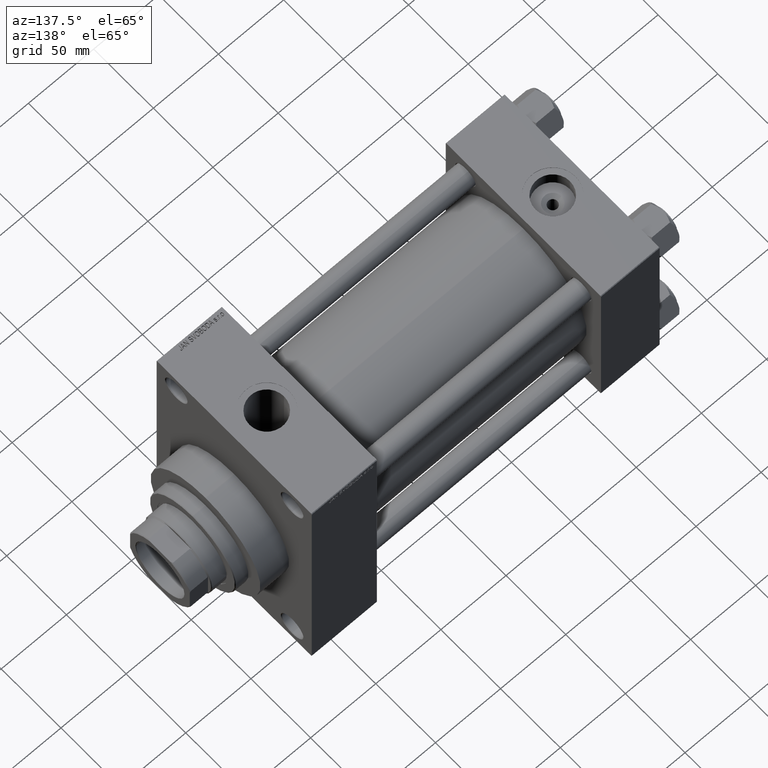
[diagram: clean part render]
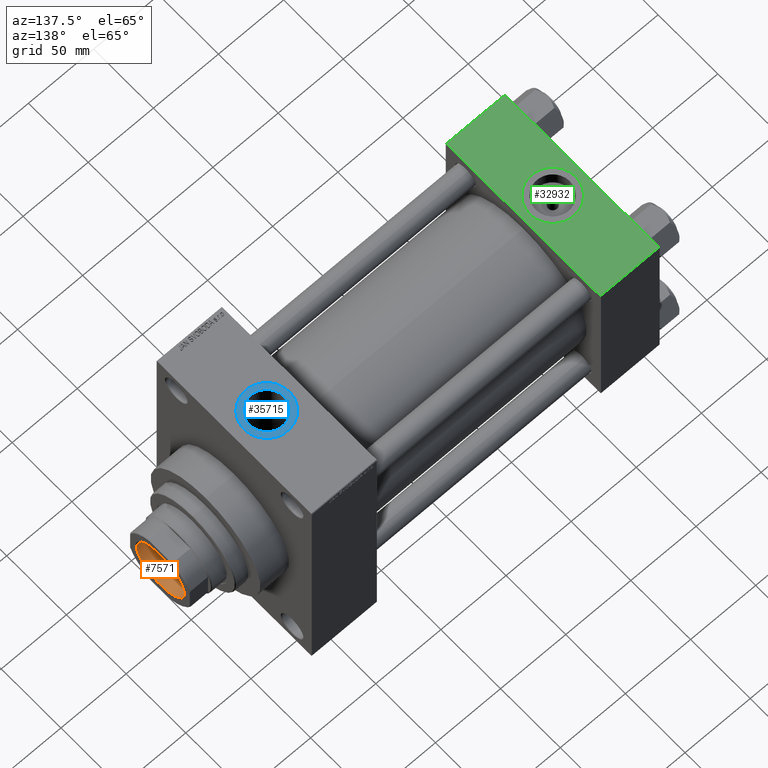
[diagram: same view with three faces highlighted in distinct colors, each labeled with its STEP entity id]
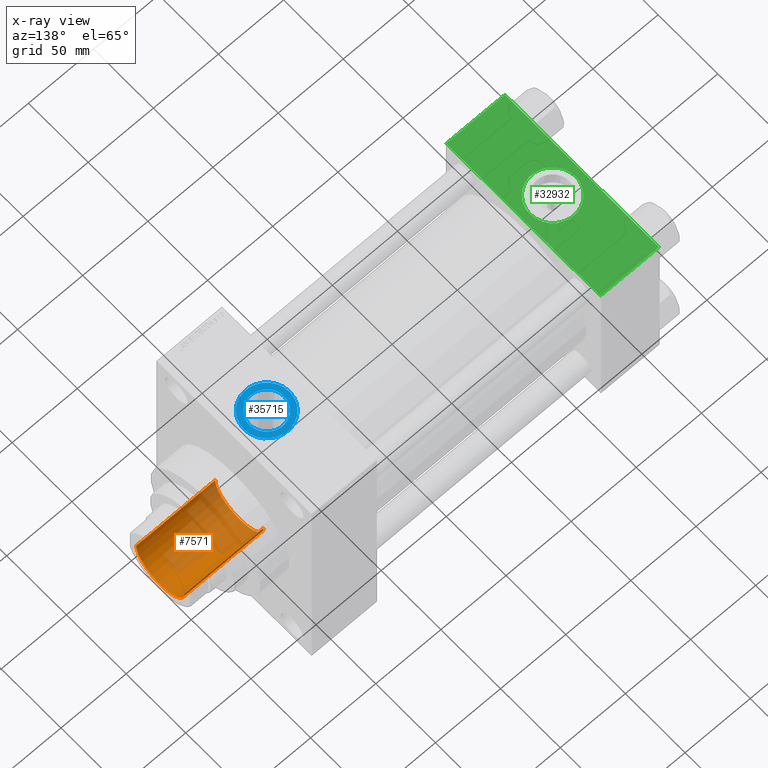
[diagram: x-ray of the same camera — body ghosted, the three highlighted faces saturated]
A machine part, auxiliary view with three faces highlighted in distinct colors.
The next image is the same camera in x-ray (body ghosted, the three faces saturated) — at least one of them is partly hidden behind the body in this view.
Their STEP definitions:

[orange] entity #7571 — the highlighted cylindrical surface (edge-blend (fillet) strip) has radius 20.25 mm, axis along (1, 0, 0).
#5237 = VECTOR ( 'NONE', #13116, 1000.000000000000000 ) ;
#6677 = DIRECTION ( 'NONE',  ( -0.000000000000000000, -0.000000000000000000, 1.000000000000000000 ) ) ;
#7065 = CARTESIAN_POINT ( 'NONE',  ( -20.24999999999998934, 2.479909768273389117E-15, 218.0000000000000284 ) ) ;
#7150 = DIRECTION ( 'NONE',  ( 1.000000000000000000, 0.000000000000000000, 0.000000000000000000 ) ) ;
#7571 = ADVANCED_FACE ( 'NONE', ( #35409 ), #17750, .F. ) ;
#7630 = CARTESIAN_POINT ( 'NONE',  ( 0.000000000000000000, 0.000000000000000000, 218.0000000000000284 ) ) ;
#7921 = AXIS2_PLACEMENT_3D ( 'NONE', #7630, #6677, #7150 ) ;
#8257 = CIRCLE ( 'NONE', #17497, 20.24999999999999289 ) ;
#9854 = ORIENTED_EDGE ( 'NONE', *, *, #27537, .F. ) ;
#10131 = EDGE_CURVE ( 'NONE', #44807, #19477, #8257, .T. ) ;
#12878 = CARTESIAN_POINT ( 'NONE',  ( -20.24999999999999289, 2.479909768273389511E-15, 279.0000000000000000 ) ) ;
#13116 = DIRECTION ( 'NONE',  ( -0.000000000000000000, -0.000000000000000000, 1.000000000000000000 ) ) ;
#13352 = LINE ( 'NONE', #12878, #5237 ) ;
#13515 = ORIENTED_EDGE ( 'NONE', *, *, #10131, .T. ) ;
#14724 = EDGE_CURVE ( 'NONE', #16809, #44807, #22942, .T. ) ;
#14726 = DIRECTION ( 'NONE',  ( -0.000000000000000000, -0.000000000000000000, 1.000000000000000000 ) ) ;
#15761 = DIRECTION ( 'NONE',  ( 0.000000000000000000, 0.000000000000000000, 1.000000000000000000 ) ) ;
#16407 = CIRCLE ( 'NONE', #7921, 20.24999999999998934 ) ;
#16809 = VERTEX_POINT ( 'NONE', #18609 ) ;
#17497 = AXIS2_PLACEMENT_3D ( 'NONE', #44520, #15761, #38006 ) ;
#17750 = CYLINDRICAL_SURFACE ( 'NONE', #35283, 20.24999999999999289 ) ;
#17835 = VERTEX_POINT ( 'NONE', #7065 ) ;
#18609 = CARTESIAN_POINT ( 'NONE',  ( 20.24999999999998934, 0.000000000000000000, 218.0000000000000284 ) ) ;
#19477 = VERTEX_POINT ( 'NONE', #33041 ) ;
#20649 = DIRECTION ( 'NONE',  ( -0.000000000000000000, -0.000000000000000000, 1.000000000000000000 ) ) ;
#22460 = CARTESIAN_POINT ( 'NONE',  ( 20.24999999999999289, 0.000000000000000000, 279.0000000000000000 ) ) ;
#22942 = LINE ( 'NONE', #22460, #40130 ) ;
#24863 = ORIENTED_EDGE ( 'NONE', *, *, #38623, .F. ) ;
#27045 = ORIENTED_EDGE ( 'NONE', *, *, #14724, .T. ) ;
#27537 = EDGE_CURVE ( 'NONE', #16809, #17835, #16407, .T. ) ;
#29109 = EDGE_LOOP ( 'NONE', ( #24863, #9854, #27045, #13515 ) ) ;
#33041 = CARTESIAN_POINT ( 'NONE',  ( -20.24999999999999289, 2.479909768273389511E-15, 278.6999999999998749 ) ) ;
#35283 = AXIS2_PLACEMENT_3D ( 'NONE', #46502, #20649, #39279 ) ;
#35409 = FACE_OUTER_BOUND ( 'NONE', #29109, .T. ) ;
#36780 = CARTESIAN_POINT ( 'NONE',  ( 20.24999999999999289, 0.000000000000000000, 278.6999999999998749 ) ) ;
#38006 = DIRECTION ( 'NONE',  ( 1.000000000000000000, 0.000000000000000000, 0.000000000000000000 ) ) ;
#38623 = EDGE_CURVE ( 'NONE', #17835, #19477, #13352, .T. ) ;
#39279 = DIRECTION ( 'NONE',  ( 1.000000000000000000, 0.000000000000000000, 0.000000000000000000 ) ) ;
#40130 = VECTOR ( 'NONE', #14726, 1000.000000000000000 ) ;
#44520 = CARTESIAN_POINT ( 'NONE',  ( 0.000000000000000000, 0.000000000000000000, 278.6999999999998749 ) ) ;
#44807 = VERTEX_POINT ( 'NONE', #36780 ) ;
#46502 = CARTESIAN_POINT ( 'NONE',  ( 0.000000000000000000, 0.000000000000000000, 279.0000000000000000 ) ) ;

[blue] entity #35715 — the highlighted planar face has unit normal (0, 0, 1).
#318 = EDGE_CURVE ( 'NONE', #1556, #25342, #25024, .T. ) ;
#1556 = VERTEX_POINT ( 'NONE', #16846 ) ;
#1600 = DIRECTION ( 'NONE',  ( 0.000000000000000000, 0.000000000000000000, 1.000000000000000000 ) ) ;
#1749 = EDGE_CURVE ( 'NONE', #25342, #1556, #22721, .T. ) ;
#4047 = CARTESIAN_POINT ( 'NONE',  ( 242.0000000000000000, 0.000000000000000000, 94.79999999999996874 ) ) ;
#4238 = CIRCLE ( 'NONE', #42000, 17.49999999999998934 ) ;
#5963 = CARTESIAN_POINT ( 'NONE',  ( 241.9999999999999716, 0.000000000000000000, 94.79999999999996874 ) ) ;
#7054 = DIRECTION ( 'NONE',  ( 1.000000000000000000, 0.000000000000000000, 0.000000000000000000 ) ) ;
#9243 = CARTESIAN_POINT ( 'NONE',  ( 259.4999999999999432, 0.000000000000000000, 94.79999999999996874 ) ) ;
#10285 = FACE_BOUND ( 'NONE', #19959, .T. ) ;
#11278 = AXIS2_PLACEMENT_3D ( 'NONE', #5963, #28412, #35900 ) ;
#12301 = VERTEX_POINT ( 'NONE', #32116 ) ;
#12447 = DIRECTION ( 'NONE',  ( 1.000000000000000000, 0.000000000000000000, 0.000000000000000000 ) ) ;
#13416 = FACE_OUTER_BOUND ( 'NONE', #28002, .T. ) ;
#13436 = AXIS2_PLACEMENT_3D ( 'NONE', #14028, #43272, #7054 ) ;
#14028 = CARTESIAN_POINT ( 'NONE',  ( 242.0000000000000000, 0.000000000000000000, 94.79999999999996874 ) ) ;
#15831 = DIRECTION ( 'NONE',  ( 1.000000000000000000, 0.000000000000000000, 0.000000000000000000 ) ) ;
#15971 = CIRCLE ( 'NONE', #31396, 17.49999999999998934 ) ;
#16846 = CARTESIAN_POINT ( 'NONE',  ( 255.2199999999999989, 1.618983068472796024E-15, 94.79999999999996874 ) ) ;
#17188 = ORIENTED_EDGE ( 'NONE', *, *, #318, .T. ) ;
#18742 = DIRECTION ( 'NONE',  ( -0.000000000000000000, -0.000000000000000000, -1.000000000000000000 ) ) ;
#19926 = CARTESIAN_POINT ( 'NONE',  ( 241.9999999999999716, 0.000000000000000000, 94.79999999999996874 ) ) ;
#19959 = EDGE_LOOP ( 'NONE', ( #21754, #17188 ) ) ;
#21546 = DIRECTION ( 'NONE',  ( 1.000000000000000000, 0.000000000000000000, 0.000000000000000000 ) ) ;
#21754 = ORIENTED_EDGE ( 'NONE', *, *, #1749, .T. ) ;
#22721 = CIRCLE ( 'NONE', #37440, 13.22000000000000952 ) ;
#24196 = DIRECTION ( 'NONE',  ( 0.000000000000000000, 0.000000000000000000, 1.000000000000000000 ) ) ;
#25024 = CIRCLE ( 'NONE', #13436, 13.22000000000000952 ) ;
#25342 = VERTEX_POINT ( 'NONE', #36240 ) ;
#28002 = EDGE_LOOP ( 'NONE', ( #29463, #29454 ) ) ;
#28159 = PLANE ( 'NONE',  #11278 ) ;
#28412 = DIRECTION ( 'NONE',  ( 0.000000000000000000, 0.000000000000000000, 1.000000000000000000 ) ) ;
#29454 = ORIENTED_EDGE ( 'NONE', *, *, #31018, .T. ) ;
#29463 = ORIENTED_EDGE ( 'NONE', *, *, #44003, .T. ) ;
#31018 = EDGE_CURVE ( 'NONE', #12301, #47523, #4238, .T. ) ;
#31396 = AXIS2_PLACEMENT_3D ( 'NONE', #39207, #24196, #21546 ) ;
#32116 = CARTESIAN_POINT ( 'NONE',  ( 224.5000000000000000, 2.143131898507865093E-15, 94.79999999999996874 ) ) ;
#35715 = ADVANCED_FACE ( 'NONE', ( #10285, #13416 ), #28159, .T. ) ;
#35900 = DIRECTION ( 'NONE',  ( 1.000000000000000000, 0.000000000000000000, -0.000000000000000000 ) ) ;
#36240 = CARTESIAN_POINT ( 'NONE',  ( 228.7800000000000011, 0.000000000000000000, 94.79999999999996874 ) ) ;
#37440 = AXIS2_PLACEMENT_3D ( 'NONE', #4047, #18742, #12447 ) ;
#39207 = CARTESIAN_POINT ( 'NONE',  ( 241.9999999999999716, 0.000000000000000000, 94.79999999999996874 ) ) ;
#42000 = AXIS2_PLACEMENT_3D ( 'NONE', #19926, #1600, #15831 ) ;
#43272 = DIRECTION ( 'NONE',  ( -0.000000000000000000, -0.000000000000000000, -1.000000000000000000 ) ) ;
#44003 = EDGE_CURVE ( 'NONE', #47523, #12301, #15971, .T. ) ;
#47523 = VERTEX_POINT ( 'NONE', #9243 ) ;

[green] entity #32932 — the highlighted planar face has unit normal (0, 0, -1).
#843 = DIRECTION ( 'NONE',  ( -1.000000000000000000, 0.000000000000000000, 0.000000000000000000 ) ) ;
#1063 = DIRECTION ( 'NONE',  ( 0.000000000000000000, -1.000000000000000000, -1.067522139062650425E-16 ) ) ;
#1085 = LINE ( 'NONE', #30530, #32281 ) ;
#1913 = VERTEX_POINT ( 'NONE', #10259 ) ;
#2507 = CARTESIAN_POINT ( 'NONE',  ( 45.00000000000000000, 64.49999999999997158, 65.00000000000001421 ) ) ;
#2612 = CARTESIAN_POINT ( 'NONE',  ( 45.00000000000000000, -64.49999999999997158, 65.00000000000000000 ) ) ;
#4408 = VECTOR ( 'NONE', #1063, 1000.000000000000000 ) ;
#4780 = DIRECTION ( 'NONE',  ( 0.000000000000000000, 0.000000000000000000, 1.000000000000000000 ) ) ;
#6349 = CIRCLE ( 'NONE', #15559, 17.50000000000000000 ) ;
#7117 = DIRECTION ( 'NONE',  ( 0.000000000000000000, 0.000000000000000000, 1.000000000000000000 ) ) ;
#8847 = ORIENTED_EDGE ( 'NONE', *, *, #33445, .T. ) ;
#9704 = CARTESIAN_POINT ( 'NONE',  ( 45.00000000000000000, 65.00000000000000000, 65.00000000000001421 ) ) ;
#10009 = CARTESIAN_POINT ( 'NONE',  ( 22.50000000000000000, -8.673617379884035472E-15, 65.00000000000000000 ) ) ;
#10091 = VERTEX_POINT ( 'NONE', #14085 ) ;
#10140 = EDGE_CURVE ( 'NONE', #36726, #1913, #41144, .T. ) ;
#10259 = CARTESIAN_POINT ( 'NONE',  ( 45.00000000000000000, -64.49999999999997158, 65.00000000000000000 ) ) ;
#11174 = AXIS2_PLACEMENT_3D ( 'NONE', #9704, #24421, #32172 ) ;
#12123 = ORIENTED_EDGE ( 'NONE', *, *, #21797, .F. ) ;
#13078 = FACE_OUTER_BOUND ( 'NONE', #30864, .T. ) ;
#13082 = ORIENTED_EDGE ( 'NONE', *, *, #26550, .F. ) ;
#13508 = VECTOR ( 'NONE', #42927, 1000.000000000000000 ) ;
#13705 = EDGE_LOOP ( 'NONE', ( #12123, #13082 ) ) ;
#13733 = EDGE_CURVE ( 'NONE', #36726, #33869, #1085, .T. ) ;
#14085 = CARTESIAN_POINT ( 'NONE',  ( 40.00000000000000000, -8.673617379884035472E-15, 65.00000000000000000 ) ) ;
#15559 = AXIS2_PLACEMENT_3D ( 'NONE', #10009, #7117, #18199 ) ;
#17286 = CARTESIAN_POINT ( 'NONE',  ( 0.000000000000000000, 65.00000000000000000, 65.00000000000001421 ) ) ;
#17328 = VERTEX_POINT ( 'NONE', #38222 ) ;
#18199 = DIRECTION ( 'NONE',  ( 1.000000000000000000, 0.000000000000000000, 0.000000000000000000 ) ) ;
#18578 = ORIENTED_EDGE ( 'NONE', *, *, #31334, .T. ) ;
#18647 = CARTESIAN_POINT ( 'NONE',  ( 4.999999999999997335, -6.530485481376167224E-15, 65.00000000000000000 ) ) ;
#18996 = DIRECTION ( 'NONE',  ( 1.000000000000000000, 0.000000000000000000, 0.000000000000000000 ) ) ;
#21023 = CIRCLE ( 'NONE', #42627, 17.50000000000000000 ) ;
#21797 = EDGE_CURVE ( 'NONE', #10091, #38800, #6349, .T. ) ;
#24310 = LINE ( 'NONE', #2612, #13508 ) ;
#24421 = DIRECTION ( 'NONE',  ( 0.000000000000000000, 1.067522139062650548E-16, -1.000000000000000000 ) ) ;
#24906 = PLANE ( 'NONE',  #11174 ) ;
#25794 = VECTOR ( 'NONE', #42425, 1000.000000000000000 ) ;
#26550 = EDGE_CURVE ( 'NONE', #38800, #10091, #21023, .T. ) ;
#28126 = CARTESIAN_POINT ( 'NONE',  ( 0.000000000000000000, 64.49999999999997158, 65.00000000000001421 ) ) ;
#30272 = CARTESIAN_POINT ( 'NONE',  ( 45.00000000000000000, 65.00000000000000000, 65.00000000000001421 ) ) ;
#30530 = CARTESIAN_POINT ( 'NONE',  ( 0.000000000000000000, 64.49999999999997158, 65.00000000000001421 ) ) ;
#30864 = EDGE_LOOP ( 'NONE', ( #18578, #8847, #32339, #43760 ) ) ;
#31334 = EDGE_CURVE ( 'NONE', #33869, #17328, #47003, .T. ) ;
#32172 = DIRECTION ( 'NONE',  ( 0.000000000000000000, 1.000000000000000000, 1.067522139062650548E-16 ) ) ;
#32281 = VECTOR ( 'NONE', #843, 1000.000000000000000 ) ;
#32339 = ORIENTED_EDGE ( 'NONE', *, *, #10140, .F. ) ;
#32932 = ADVANCED_FACE ( 'NONE', ( #42799, #13078 ), #24906, .F. ) ;
#33445 = EDGE_CURVE ( 'NONE', #17328, #1913, #24310, .T. ) ;
#33869 = VERTEX_POINT ( 'NONE', #28126 ) ;
#36726 = VERTEX_POINT ( 'NONE', #2507 ) ;
#38222 = CARTESIAN_POINT ( 'NONE',  ( 0.000000000000000000, -64.49999999999997158, 65.00000000000000000 ) ) ;
#38800 = VERTEX_POINT ( 'NONE', #18647 ) ;
#41006 = CARTESIAN_POINT ( 'NONE',  ( 22.50000000000000000, -8.673617379884035472E-15, 65.00000000000000000 ) ) ;
#41144 = LINE ( 'NONE', #30272, #4408 ) ;
#42425 = DIRECTION ( 'NONE',  ( 0.000000000000000000, -1.000000000000000000, -1.067522139062650425E-16 ) ) ;
#42627 = AXIS2_PLACEMENT_3D ( 'NONE', #41006, #4780, #18996 ) ;
#42799 = FACE_BOUND ( 'NONE', #13705, .T. ) ;
#42927 = DIRECTION ( 'NONE',  ( 1.000000000000000000, 0.000000000000000000, 0.000000000000000000 ) ) ;
#43760 = ORIENTED_EDGE ( 'NONE', *, *, #13733, .T. ) ;
#47003 = LINE ( 'NONE', #17286, #25794 ) ;